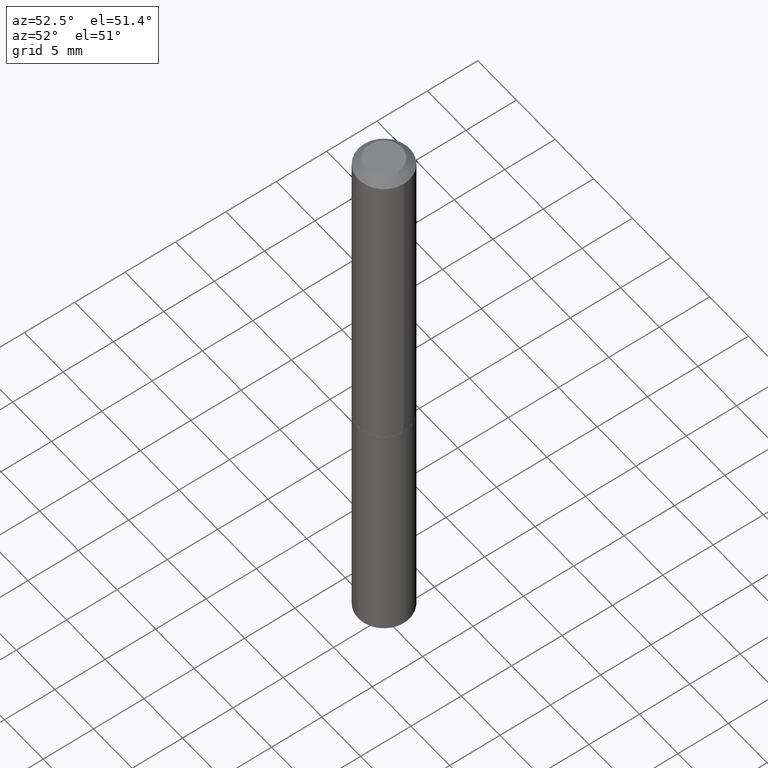
[diagram: clean part render]
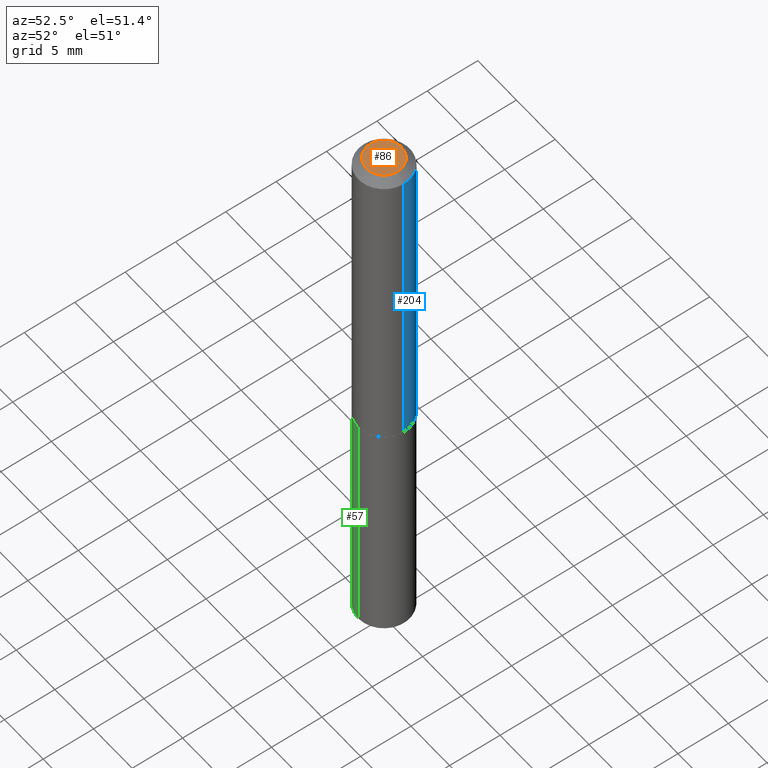
[diagram: same view with three faces highlighted in distinct colors, each labeled with its STEP entity id]
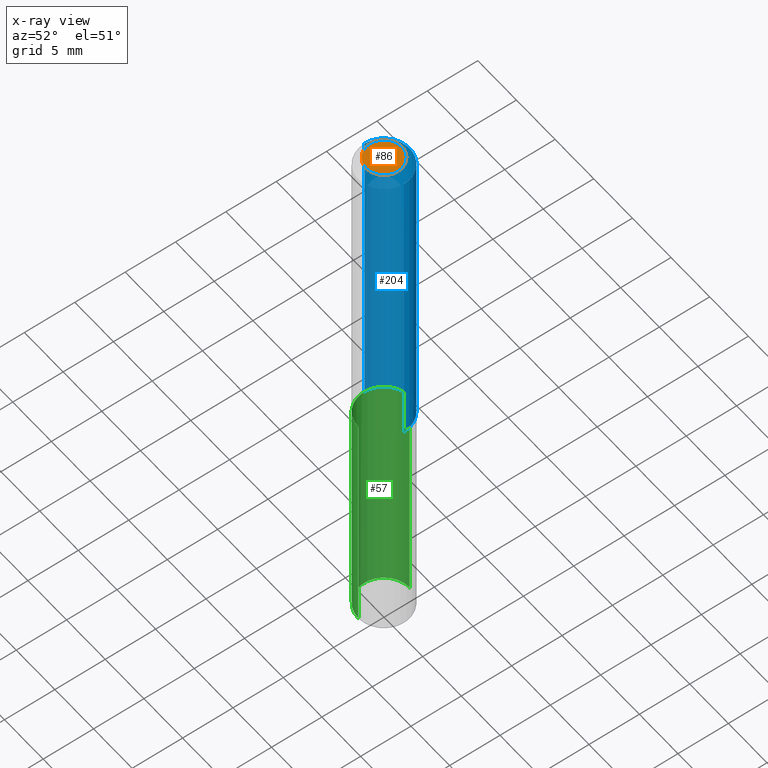
[diagram: x-ray of the same camera — body ghosted, the three highlighted faces saturated]
A machine part, auxiliary view with three faces highlighted in distinct colors.
The next image is the same camera in x-ray (body ghosted, the three faces saturated) — at least one of them is partly hidden behind the body in this view.
Their STEP definitions:

[orange] entity #86 — the highlighted planar face has unit normal (0, -0, -1).
#7 = EDGE_CURVE ( 'NONE', #328, #125, #363, .T. ) ;
#36 = EDGE_CURVE ( 'NONE', #125, #328, #132, .T. ) ;
#80 = CARTESIAN_POINT ( 'NONE',  ( 4.492253318863949576E-48, -6.413747168845403315E-34, -1.836970198721013465E-19 ) ) ;
#84 = DIRECTION ( 'NONE',  ( 2.438088387897960049E-29, -3.491481338843145188E-15, -1.000000000000000000 ) ) ;
#86 = ADVANCED_FACE ( 'NONE', ( #340 ), #133, .F. ) ;
#109 = CARTESIAN_POINT ( 'NONE',  ( 4.492253318863949576E-48, -6.413747168845403315E-34, -1.836970198721013465E-19 ) ) ;
#125 = VERTEX_POINT ( 'NONE', #271 ) ;
#132 = CIRCLE ( 'NONE', #234, 0.06925000000000000600 ) ;
#133 = PLANE ( 'NONE',  #148 ) ;
#148 = AXIS2_PLACEMENT_3D ( 'NONE', #162, #84, #308 ) ;
#162 = CARTESIAN_POINT ( 'NONE',  ( 2.246126659431974788E-48, -3.206873584422701658E-34, -9.184850993605067327E-20 ) ) ;
#191 = AXIS2_PLACEMENT_3D ( 'NONE', #80, #217, #278 ) ;
#217 = DIRECTION ( 'NONE',  ( -2.445468806185136597E-29, 3.491481338843145583E-15, 1.000000000000000000 ) ) ;
#231 = EDGE_LOOP ( 'NONE', ( #263, #389 ) ) ;
#234 = AXIS2_PLACEMENT_3D ( 'NONE', #109, #306, #282 ) ;
#263 = ORIENTED_EDGE ( 'NONE', *, *, #7, .T. ) ;
#271 = CARTESIAN_POINT ( 'NONE',  ( 0.06925000000000000600, -6.368391634802832925E-16, -1.836970198681843421E-19 ) ) ;
#278 = DIRECTION ( 'NONE',  ( 1.000000000000000000, -6.982962677686267499E-15, 4.876166693236633478E-29 ) ) ;
#282 = DIRECTION ( 'NONE',  ( 1.000000000000000000, -6.982962677686267499E-15, 4.876166693236633478E-29 ) ) ;
#306 = DIRECTION ( 'NONE',  ( -2.445468806185136597E-29, 3.491481338843145583E-15, 1.000000000000000000 ) ) ;
#308 = DIRECTION ( 'NONE',  ( -1.000000000000000000, 6.982962677686265922E-15, -4.876176775795935793E-29 ) ) ;
#328 = VERTEX_POINT ( 'NONE', #375 ) ;
#340 = FACE_OUTER_BOUND ( 'NONE', #231, .T. ) ;
#363 = CIRCLE ( 'NONE', #191, 0.06925000000000000600 ) ;
#375 = CARTESIAN_POINT ( 'NONE',  ( -0.06925000000000000600, 5.381245613491975063E-16, -1.836970198756736818E-19 ) ) ;
#389 = ORIENTED_EDGE ( 'NONE', *, *, #36, .T. ) ;

[blue] entity #204 — the highlighted cylindrical surface (edge-blend (fillet) strip) has radius 2.5527 mm, axis along (-0, 0, 1).
#11 = CARTESIAN_POINT ( 'NONE',  ( 7.642090019328600035E-31, -1.091087918388489897E-16, -0.03125000000000020123 ) ) ;
#21 = CARTESIAN_POINT ( 'NONE',  ( 0.000000000000000000, 0.000000000000000000, 0.000000000000000000 ) ) ;
#22 = FACE_OUTER_BOUND ( 'NONE', #174, .T. ) ;
#34 = ORIENTED_EDGE ( 'NONE', *, *, #183, .T. ) ;
#54 = DIRECTION ( 'NONE',  ( -2.445468806185136597E-29, 3.491481338843145583E-15, 1.000000000000000000 ) ) ;
#70 = ORIENTED_EDGE ( 'NONE', *, *, #385, .F. ) ;
#78 = LINE ( 'NONE', #136, #110 ) ;
#88 = CARTESIAN_POINT ( 'NONE',  ( 0.1005000000000001864, -5.111528680066364398E-15, -1.263000000000000123 ) ) ;
#93 = VERTEX_POINT ( 'NONE', #366 ) ;
#110 = VECTOR ( 'NONE', #245, 39.37007874015748143 ) ;
#115 = DIRECTION ( 'NONE',  ( 1.000000000000000000, -6.982962677686267499E-15, 0.000000000000000000 ) ) ;
#124 = VECTOR ( 'NONE', #311, 39.37007874015748143 ) ;
#136 = CARTESIAN_POINT ( 'NONE',  ( 0.1005000000000000893, -7.017877491074704671E-16, 4.900557659674919900E-30 ) ) ;
#142 = DIRECTION ( 'NONE',  ( -2.445468806185136597E-29, 3.491481338843145583E-15, 1.000000000000000000 ) ) ;
#145 = CIRCLE ( 'NONE', #386, 0.1005000000000001864 ) ;
#152 = VERTEX_POINT ( 'NONE', #88 ) ;
#174 = EDGE_LOOP ( 'NONE', ( #34, #327, #70, #205 ) ) ;
#183 = EDGE_CURVE ( 'NONE', #152, #331, #145, .T. ) ;
#197 = DIRECTION ( 'NONE',  ( -2.445468806185136597E-29, 3.491481338843145583E-15, 1.000000000000000000 ) ) ;
#199 = DIRECTION ( 'NONE',  ( 1.000000000000000000, -6.982962677686266711E-15, 4.876176775795935793E-29 ) ) ;
#204 = ADVANCED_FACE ( 'NONE', ( #22 ), #288, .T. ) ;
#205 = ORIENTED_EDGE ( 'NONE', *, *, #283, .F. ) ;
#209 = AXIS2_PLACEMENT_3D ( 'NONE', #21, #142, #199 ) ;
#220 = AXIS2_PLACEMENT_3D ( 'NONE', #11, #54, #322 ) ;
#238 = CARTESIAN_POINT ( 'NONE',  ( -0.1005000000000000893, 7.140954494389013210E-16, -4.943529765706185016E-30 ) ) ;
#245 = DIRECTION ( 'NONE',  ( -2.445468806185136877E-29, 3.491481338843145188E-15, 1.000000000000000000 ) ) ;
#270 = CARTESIAN_POINT ( 'NONE',  ( 0.1005000000000000060, -8.108965409463188774E-16, -0.03125000000000020123 ) ) ;
#273 = CIRCLE ( 'NONE', #220, 0.1005000000000000060 ) ;
#276 = EDGE_CURVE ( 'NONE', #331, #93, #281, .T. ) ;
#281 = LINE ( 'NONE', #238, #124 ) ;
#283 = EDGE_CURVE ( 'NONE', #152, #359, #78, .T. ) ;
#288 = CYLINDRICAL_SURFACE ( 'NONE', #209, 0.1005000000000000893 ) ;
#311 = DIRECTION ( 'NONE',  ( -2.445468806185136877E-29, 3.491481338843145188E-15, 1.000000000000000000 ) ) ;
#319 = CARTESIAN_POINT ( 'NONE',  ( 3.088627102211827979E-29, -4.409740930958893142E-15, -1.263000000000000123 ) ) ;
#322 = DIRECTION ( 'NONE',  ( 1.000000000000000000, -6.982962677686266711E-15, 0.000000000000000000 ) ) ;
#327 = ORIENTED_EDGE ( 'NONE', *, *, #276, .T. ) ;
#331 = VERTEX_POINT ( 'NONE', #371 ) ;
#359 = VERTEX_POINT ( 'NONE', #270 ) ;
#366 = CARTESIAN_POINT ( 'NONE',  ( -0.1005000000000000060, -1.545329411959969209E-15, -0.03125000000000020123 ) ) ;
#371 = CARTESIAN_POINT ( 'NONE',  ( -0.1005000000000001864, -3.695645481519991426E-15, -1.263000000000000123 ) ) ;
#385 = EDGE_CURVE ( 'NONE', #359, #93, #273, .T. ) ;
#386 = AXIS2_PLACEMENT_3D ( 'NONE', #319, #197, #115 ) ;

[green] entity #57 — the highlighted cylindrical surface (edge-blend (fillet) strip) has radius 2.5527 mm, axis along (-0, 0, 1).
#5 = CARTESIAN_POINT ( 'NONE',  ( 3.089849836614920220E-29, -4.411486671628314645E-15, -1.263500000000000068 ) ) ;
#15 = CARTESIAN_POINT ( 'NONE',  ( 7.140954494389548650E-16, 0.1004999999999956067, -1.263500000000000290 ) ) ;
#38 = CARTESIAN_POINT ( 'NONE',  ( 7.140954494389315936E-16, 0.1004999999999956067, -1.263500000000000290 ) ) ;
#47 = LINE ( 'NONE', #76, #89 ) ;
#53 = CARTESIAN_POINT ( 'NONE',  ( -7.017877491074157398E-16, -0.1005000000000077498, -2.213420991456246600 ) ) ;
#57 = ADVANCED_FACE ( 'NONE', ( #188 ), #186, .T. ) ;
#76 = CARTESIAN_POINT ( 'NONE',  ( -7.017877491074388140E-16, -0.1005000000000044191, -1.263499999999999845 ) ) ;
#81 = AXIS2_PLACEMENT_3D ( 'NONE', #130, #184, #237 ) ;
#85 = CARTESIAN_POINT ( 'NONE',  ( -7.017877491074388140E-16, -0.1005000000000044191, -1.263499999999999845 ) ) ;
#89 = VECTOR ( 'NONE', #347, 39.37007874015748143 ) ;
#92 = ORIENTED_EDGE ( 'NONE', *, *, #131, .F. ) ;
#113 = DIRECTION ( 'NONE',  ( -6.982962677686265922E-15, -1.000000000000000000, 2.718256710113694497E-15 ) ) ;
#118 = AXIS2_PLACEMENT_3D ( 'NONE', #214, #336, #113 ) ;
#120 = EDGE_LOOP ( 'NONE', ( #92, #362, #207, #269 ) ) ;
#121 = VERTEX_POINT ( 'NONE', #15 ) ;
#130 = CARTESIAN_POINT ( 'NONE',  ( 3.089849836614920220E-29, -4.411486671628314645E-15, -1.263500000000000068 ) ) ;
#131 = EDGE_CURVE ( 'NONE', #365, #121, #333, .T. ) ;
#144 = EDGE_CURVE ( 'NONE', #365, #177, #379, .T. ) ;
#157 = DIRECTION ( 'NONE',  ( -2.445400458116039317E-29, 3.491579217168222825E-15, 1.000000000000000000 ) ) ;
#177 = VERTEX_POINT ( 'NONE', #53 ) ;
#184 = DIRECTION ( 'NONE',  ( -2.445400458116039317E-29, 3.491579217168223219E-15, 1.000000000000000000 ) ) ;
#186 = CYLINDRICAL_SURFACE ( 'NONE', #81, 0.1005000000000000060 ) ;
#188 = FACE_OUTER_BOUND ( 'NONE', #120, .T. ) ;
#207 = ORIENTED_EDGE ( 'NONE', *, *, #254, .T. ) ;
#214 = CARTESIAN_POINT ( 'NONE',  ( 5.412787064296067741E-29, -7.728211063348778452E-15, -2.213420991456246600 ) ) ;
#215 = CARTESIAN_POINT ( 'NONE',  ( 7.140954494389547664E-16, 0.1004999999999922899, -2.213420991456247044 ) ) ;
#232 = DIRECTION ( 'NONE',  ( -6.982962677686265922E-15, -1.000000000000000000, 2.718256710113694497E-15 ) ) ;
#235 = CIRCLE ( 'NONE', #293, 0.1005000000000000060 ) ;
#237 = DIRECTION ( 'NONE',  ( -6.982962677686265922E-15, -1.000000000000000000, 2.718256710113694497E-15 ) ) ;
#254 = EDGE_CURVE ( 'NONE', #177, #324, #47, .T. ) ;
#261 = EDGE_CURVE ( 'NONE', #121, #324, #235, .T. ) ;
#269 = ORIENTED_EDGE ( 'NONE', *, *, #261, .F. ) ;
#293 = AXIS2_PLACEMENT_3D ( 'NONE', #5, #360, #232 ) ;
#313 = VECTOR ( 'NONE', #157, 39.37007874015748143 ) ;
#324 = VERTEX_POINT ( 'NONE', #85 ) ;
#333 = LINE ( 'NONE', #38, #313 ) ;
#336 = DIRECTION ( 'NONE',  ( -2.445400458116039317E-29, 3.491579217168223219E-15, 1.000000000000000000 ) ) ;
#347 = DIRECTION ( 'NONE',  ( -2.445400458116039317E-29, 3.491579217168222825E-15, 1.000000000000000000 ) ) ;
#360 = DIRECTION ( 'NONE',  ( -2.445400458116039317E-29, 3.491579217168223219E-15, 1.000000000000000000 ) ) ;
#362 = ORIENTED_EDGE ( 'NONE', *, *, #144, .T. ) ;
#365 = VERTEX_POINT ( 'NONE', #215 ) ;
#379 = CIRCLE ( 'NONE', #118, 0.1005000000000000060 ) ;